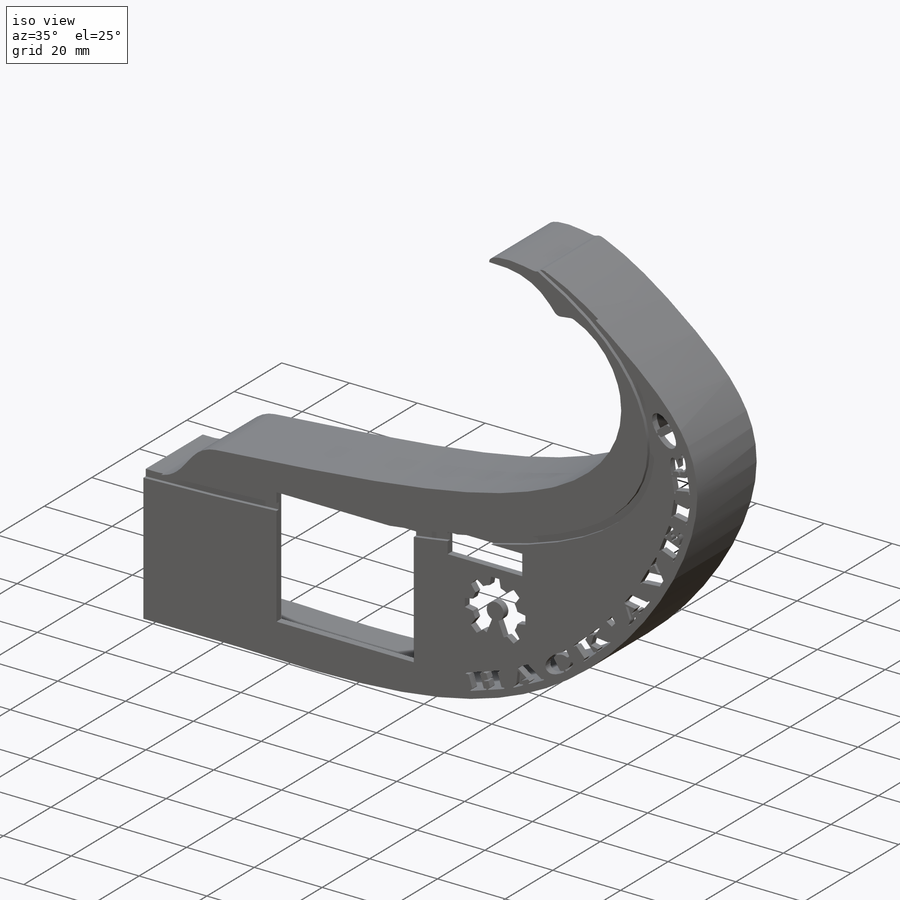
[diagram: iso view]
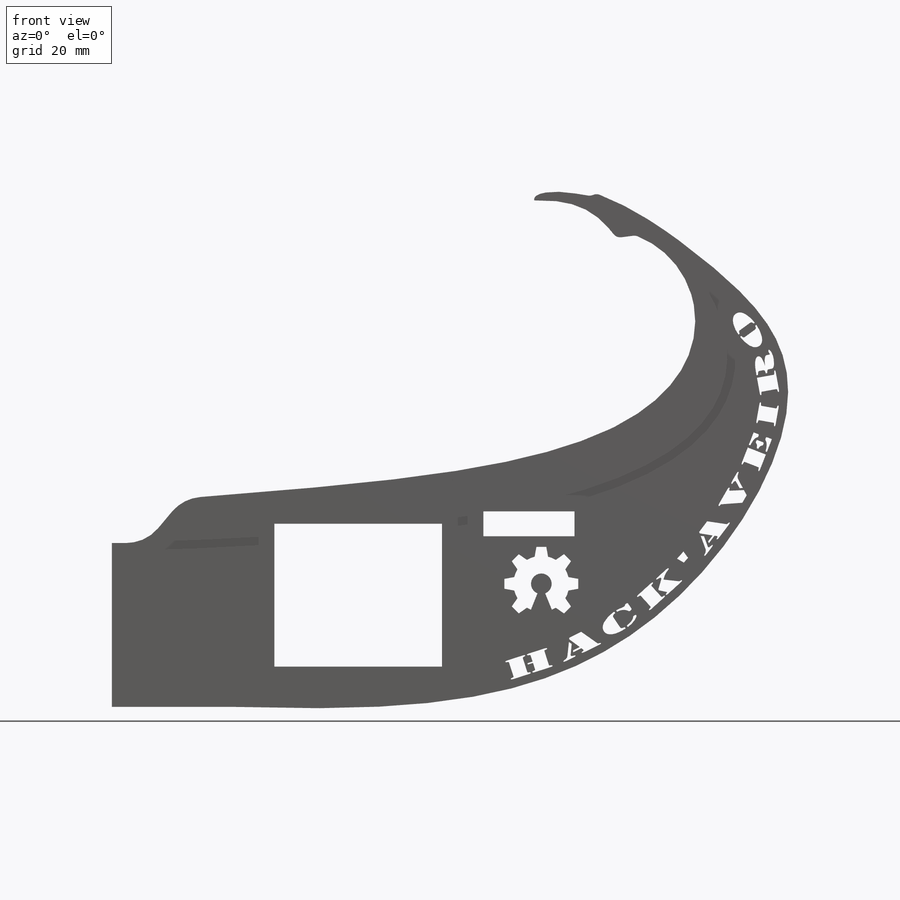
[diagram: front view]
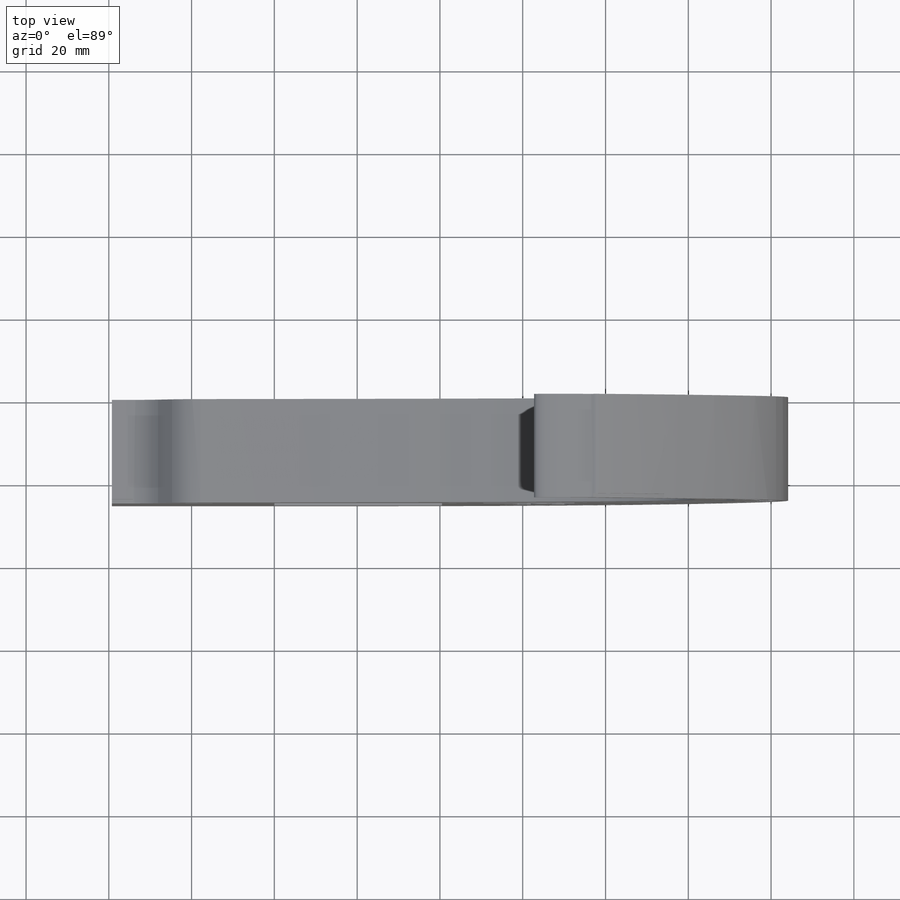
[diagram: top view]
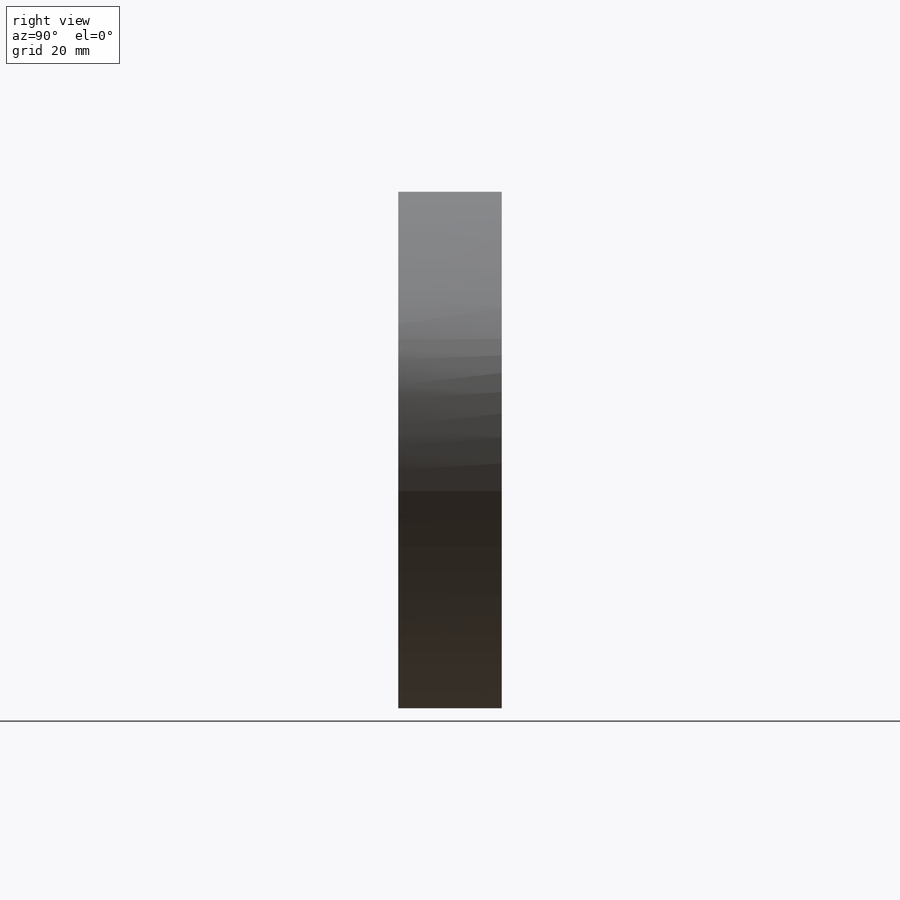
[diagram: right view]
SOLIDWORKS PART (.sldprt)
format: sldprt  version: not decoded by parser v0  size: 1,267,200 bytes
history: native  units: mm
features: sketch x8, cut_extrude x5, extrude x2, fillet x2, material x1, shell x1 (+13 scaffold rows collapsed)
feature tree (32):
  scaffold x13  (default folders/planes/origin — collapsed)
  material  "Material <not specified>"
  sketch  "Sketch1"  dims[D1=34.5mm D2=40.5mm]
  extrude  "Boss-Extrude1"  Depth=25mm
  fillet  "Fillet1"  Radius=10mm
  fillet  "Fillet2"  Radius=2mm
  shell  "Shell3"  Thickness=2mm
  sketch  "Sketch2"  dims[D1=2.0mm]
  cut_extrude  "Cut-Extrude1"  Depth=1mm
  sketch  "Sketch3"
  sketch  "Sketch Picture5"  dims[c1.D3=~1.718596mm c1.D1=~2.766537mm c2.D3=5.0mm c2.D4=18.0mm c2.D5=13.5mm c2.D1=24.0mm c2.D2=20.0mm c2.D6=~2.364644mm c3.D6=10.0deg c3.D7=2.4mm c3.D8=22.0deg c3.D10=~2.402744mm c4.D10=90.0deg c4.D9=8.0]
  cut_extrude  "Cut-Extrude2"  [1 undecoded]
  sketch  "Sketch4"  dims[D1=2.0mm]
  cut_extrude  "Cut-Extrude3"  [1 undecoded]
  sketch  "Sketch5"  dims[D1=37.5mm D2=10.0mm D3=23.79mm]
  cut_extrude  "Cut-Extrude4"  Depth=10mm
  sketch  "Sketch6"  dims[c1.D1=6.0mm c1.D2=~2.558796mm c2.D2=2.5mm c2.D5=6.0mm c2.D6=6.0mm c2.D7=2.5mm c3.D7=2.5mm c3.D3=4.0mm c3.D4=4.0mm c3.D5=12.0mm]
  extrude  "Boss-Extrude2"  Depth=17mm
  sketch  "Sketch7"  dims[D1=10.0mm D2=22.0mm D3=3.0mm D4=6.0mm]
  cut_extrude  "Cut-Extrude5"  [1 undecoded]
decode coverage: 14 of 18 modeling features carry decoded parameters
note: ~ marks probable driven/reference dimensions
note: 3 parameter values undecoded
summary: no parameter record found for 3 features
note: suppression state not decoded; provenance and decode notes live in map.json
